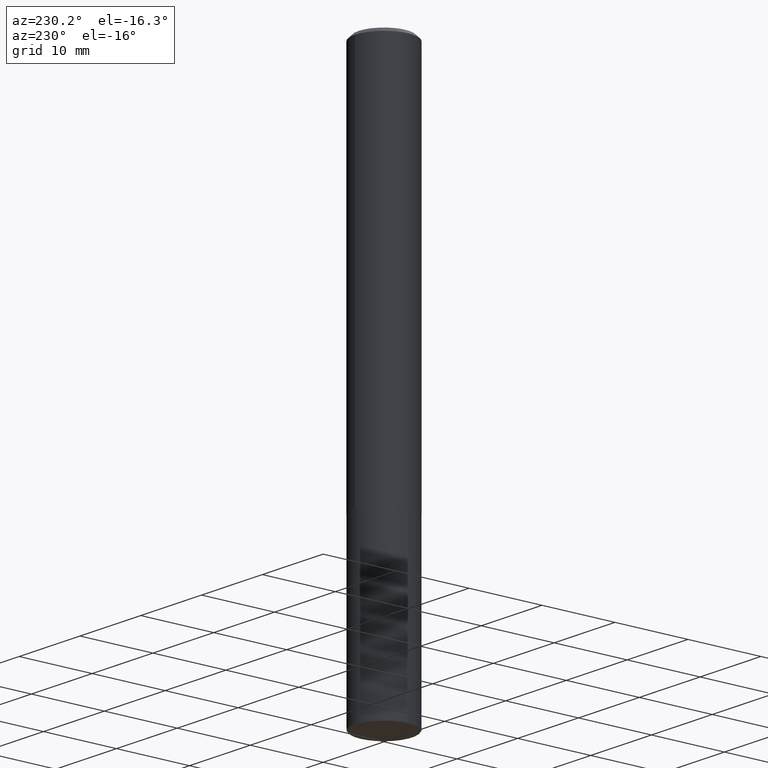
[diagram: clean part render]
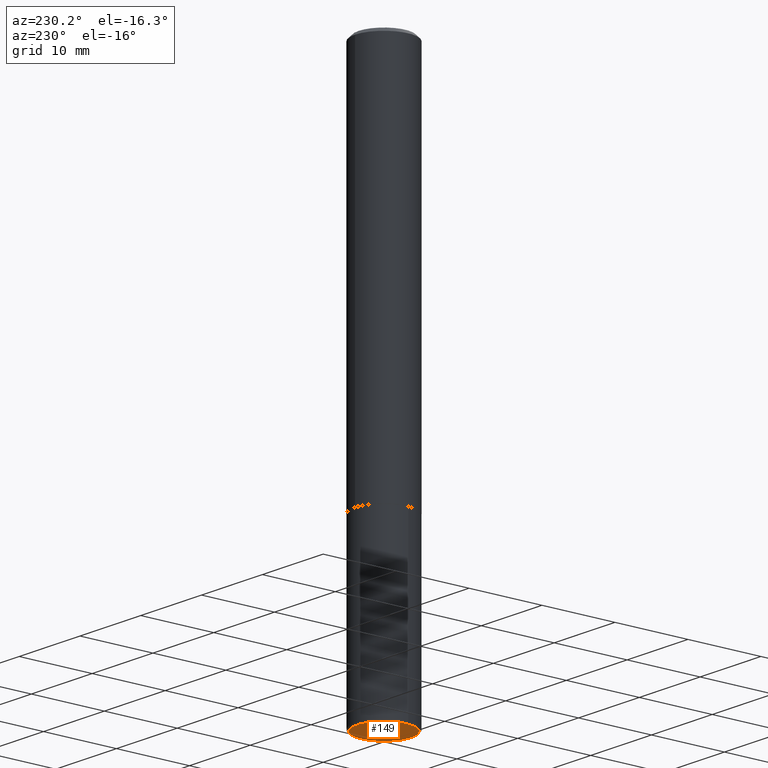
[diagram: same view with one face highlighted and labeled with its STEP entity id]
A machine part, auxiliary view. The second image highlights one B-rep face of the part: STEP entity #149.
In plain terms, the highlighted planar face has unit normal (0, -0, -1).
Its self-contained STEP definition (entity closure, byte-faithful):
#24 = EDGE_CURVE ( 'NONE', #55, #41, #253, .T. ) ;
#41 = VERTEX_POINT ( 'NONE', #417 ) ;
#55 = VERTEX_POINT ( 'NONE', #265 ) ;
#71 = CARTESIAN_POINT ( 'NONE',  ( 7.336406418555409790E-29, -1.047444401652943635E-14, -3.000000000000000444 ) ) ;
#81 = DIRECTION ( 'NONE',  ( 2.438088387897960049E-29, -3.491481338843145188E-15, -1.000000000000000000 ) ) ;
#118 = DIRECTION ( 'NONE',  ( 1.000000000000000000, -6.982962677686270655E-15, 0.000000000000000000 ) ) ;
#149 = ADVANCED_FACE ( 'NONE', ( #278 ), #240, .T. ) ;
#155 = ORIENTED_EDGE ( 'NONE', *, *, #24, .F. ) ;
#171 = DIRECTION ( 'NONE',  ( 1.000000000000000000, -6.982962677686270655E-15, 0.000000000000000000 ) ) ;
#201 = DIRECTION ( 'NONE',  ( -2.445468806185136597E-29, 3.491481338843145583E-15, 1.000000000000000000 ) ) ;
#224 = AXIS2_PLACEMENT_3D ( 'NONE', #71, #201, #118 ) ;
#230 = EDGE_CURVE ( 'NONE', #41, #55, #404, .T. ) ;
#236 = ORIENTED_EDGE ( 'NONE', *, *, #230, .F. ) ;
#240 = PLANE ( 'NONE',  #262 ) ;
#253 = CIRCLE ( 'NONE', #271, 0.1462500000000000189 ) ;
#262 = AXIS2_PLACEMENT_3D ( 'NONE', #365, #81, #300 ) ;
#265 = CARTESIAN_POINT ( 'NONE',  ( 0.1462500000000000189, -1.149570230814105460E-14, -3.000000000000000444 ) ) ;
#271 = AXIS2_PLACEMENT_3D ( 'NONE', #322, #292, #171 ) ;
#278 = FACE_OUTER_BOUND ( 'NONE', #287, .T. ) ;
#287 = EDGE_LOOP ( 'NONE', ( #155, #236 ) ) ;
#292 = DIRECTION ( 'NONE',  ( -2.445468806185136597E-29, 3.491481338843145583E-15, 1.000000000000000000 ) ) ;
#300 = DIRECTION ( 'NONE',  ( -1.000000000000000000, 6.982962677686265922E-15, -4.876176775795935793E-29 ) ) ;
#322 = CARTESIAN_POINT ( 'NONE',  ( 7.336406418555409790E-29, -1.047444401652943635E-14, -3.000000000000000444 ) ) ;
#365 = CARTESIAN_POINT ( 'NONE',  ( 7.336406418555409790E-29, -1.047444401652943635E-14, -3.000000000000000444 ) ) ;
#404 = CIRCLE ( 'NONE', #224, 0.1462500000000000189 ) ;
#417 = CARTESIAN_POINT ( 'NONE',  ( -0.1462500000000000189, -9.382290721998072185E-15, -3.000000000000000444 ) ) ;